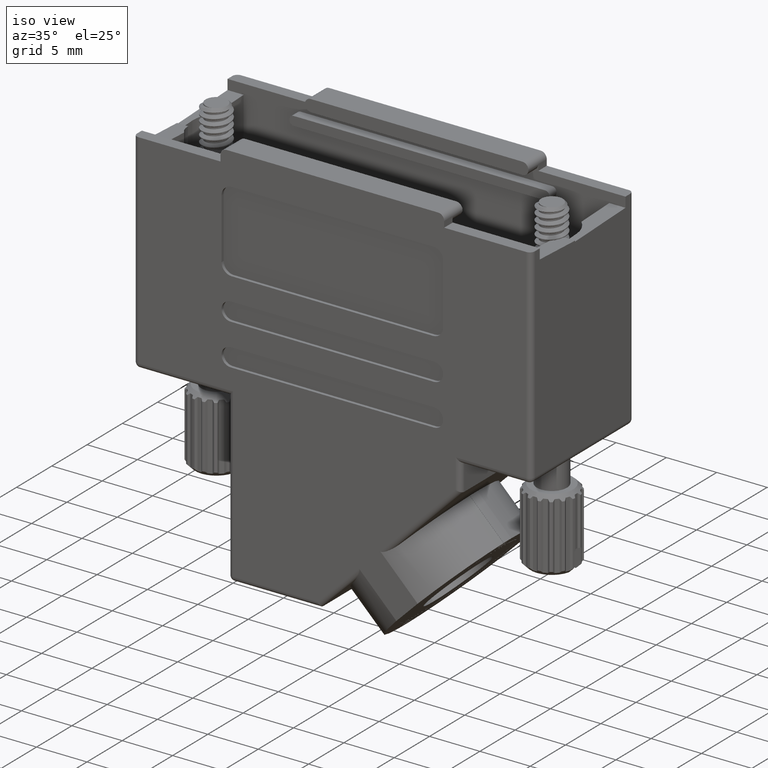
[diagram: clean part render]
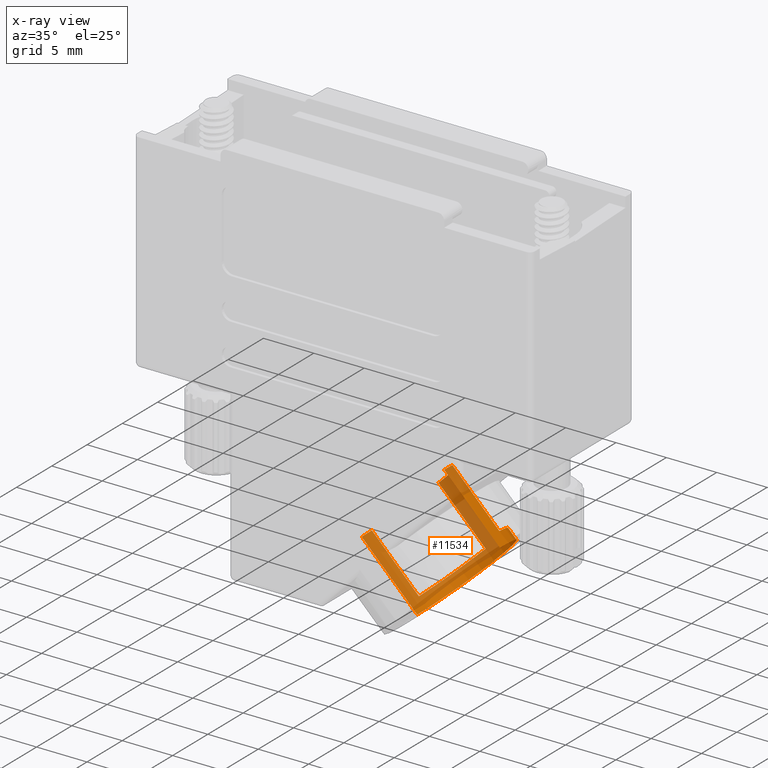
[diagram: x-ray — body ghosted, one internal face saturated and labeled with its STEP entity id]
A machine part, iso view, then the same camera in x-ray: the body is ghosted and one INTERNAL B-rep face — a face not visible from any outside direction — is saturated and labeled: STEP entity #11534.
In plain terms, the highlighted cylindrical surface (partial cylindrical patch) has radius 5.8 mm, axis along (-0.7071, -0, 0.7071).
Its self-contained STEP definition (entity closure, byte-faithful):
#59 = VERTEX_POINT ( 'NONE', #12684 ) ;
#449 = VERTEX_POINT ( 'NONE', #3853 ) ;
#569 = EDGE_CURVE ( 'NONE', #19663, #11645, #14539, .T. ) ;
#696 = ORIENTED_EDGE ( 'NONE', *, *, #21336, .F. ) ;
#1050 = ORIENTED_EDGE ( 'NONE', *, *, #6643, .T. ) ;
#1145 = LINE ( 'NONE', #1256, #13028 ) ;
#1214 = DIRECTION ( 'NONE',  ( -1.000000000000000000, 0.000000000000000000, 0.000000000000000000 ) ) ;
#1254 = CARTESIAN_POINT ( 'NONE',  ( 0.000000000000000000, 0.000000000000000000, -13.79999999999999893 ) ) ;
#1256 = CARTESIAN_POINT ( 'NONE',  ( 0.7000000000000019540, -5.757603668193911339, -5.320786110243318490 ) ) ;
#1323 = DIRECTION ( 'NONE',  ( 0.000000000000000000, 0.000000000000000000, -1.000000000000000000 ) ) ;
#1487 = DIRECTION ( 'NONE',  ( -1.000000000000000000, 0.000000000000000000, 0.000000000000000000 ) ) ;
#1706 = FACE_OUTER_BOUND ( 'NONE', #17716, .T. ) ;
#1934 = CARTESIAN_POINT ( 'NONE',  ( 0.000000000000000000, 0.000000000000000000, -7.200000000000000178 ) ) ;
#2038 = DIRECTION ( 'NONE',  ( -0.000000000000000000, -0.000000000000000000, 1.000000000000000000 ) ) ;
#2151 = CARTESIAN_POINT ( 'NONE',  ( -0.6999999999999997335, -5.757603668193912227, -13.79999999999999893 ) ) ;
#2337 = ORIENTED_EDGE ( 'NONE', *, *, #11369, .F. ) ;
#2380 = CARTESIAN_POINT ( 'NONE',  ( 0.000000000000000000, 0.000000000000000000, -7.200000000000000178 ) ) ;
#2413 = CARTESIAN_POINT ( 'NONE',  ( -5.652433104425032440, -1.299999999999997602, -7.200000000000000178 ) ) ;
#2453 = DIRECTION ( 'NONE',  ( 0.000000000000000000, 0.000000000000000000, -1.000000000000000000 ) ) ;
#2896 = CARTESIAN_POINT ( 'NONE',  ( 0.7000000000000019540, -5.757603668193911339, -7.200000000000000178 ) ) ;
#2991 = CIRCLE ( 'NONE', #16303, 5.799999999999999822 ) ;
#3087 = CIRCLE ( 'NONE', #14602, 5.799999999999999822 ) ;
#3399 = EDGE_CURVE ( 'NONE', #20760, #4731, #16908, .T. ) ;
#3620 = CYLINDRICAL_SURFACE ( 'NONE', #6569, 5.799999999999999822 ) ;
#3745 = VECTOR ( 'NONE', #20941, 1000.000000000000000 ) ;
#3792 = ORIENTED_EDGE ( 'NONE', *, *, #9082, .T. ) ;
#3810 = VERTEX_POINT ( 'NONE', #16354 ) ;
#3853 = CARTESIAN_POINT ( 'NONE',  ( -5.799999999999999822, 2.275493257148285210E-15, -7.200000000000000178 ) ) ;
#4160 = CARTESIAN_POINT ( 'NONE',  ( 5.799999999999999822, 2.606147892918070189E-15, -15.00000000000000000 ) ) ;
#4295 = DIRECTION ( 'NONE',  ( 0.000000000000000000, 0.000000000000000000, -1.000000000000000000 ) ) ;
#4357 = AXIS2_PLACEMENT_3D ( 'NONE', #2380, #4295, #11068 ) ;
#4361 = VECTOR ( 'NONE', #22159, 1000.000000000000000 ) ;
#4363 = EDGE_CURVE ( 'NONE', #4731, #449, #4917, .T. ) ;
#4506 = ORIENTED_EDGE ( 'NONE', *, *, #11793, .T. ) ;
#4517 = DIRECTION ( 'NONE',  ( -0.000000000000000000, -0.000000000000000000, -1.000000000000000000 ) ) ;
#4551 = VECTOR ( 'NONE', #2038, 1000.000000000000000 ) ;
#4639 = CIRCLE ( 'NONE', #12870, 5.799999999999999822 ) ;
#4731 = VERTEX_POINT ( 'NONE', #8394 ) ;
#4830 = CARTESIAN_POINT ( 'NONE',  ( 0.000000000000000000, 0.000000000000000000, -7.200000000000000178 ) ) ;
#4892 = DIRECTION ( 'NONE',  ( -1.000000000000000000, 0.000000000000000000, 0.000000000000000000 ) ) ;
#4917 = LINE ( 'NONE', #18646, #4361 ) ;
#5123 = VERTEX_POINT ( 'NONE', #16357 ) ;
#5650 = DIRECTION ( 'NONE',  ( -1.000000000000000000, 0.000000000000000000, 0.000000000000000000 ) ) ;
#6247 = CIRCLE ( 'NONE', #19548, 5.799999999999999822 ) ;
#6569 = AXIS2_PLACEMENT_3D ( 'NONE', #20635, #13865, #15670 ) ;
#6643 = EDGE_CURVE ( 'NONE', #13390, #5123, #16588, .T. ) ;
#6665 = VERTEX_POINT ( 'NONE', #14211 ) ;
#6988 = CARTESIAN_POINT ( 'NONE',  ( -5.652433104425032440, -1.299999999999997602, -4.203335187245660798 ) ) ;
#8394 = CARTESIAN_POINT ( 'NONE',  ( -5.799999999999999822, 2.606147892918070189E-15, -15.00000000000000000 ) ) ;
#8734 = CIRCLE ( 'NONE', #16985, 5.799999999999999822 ) ;
#8800 = ORIENTED_EDGE ( 'NONE', *, *, #569, .T. ) ;
#9005 = VERTEX_POINT ( 'NONE', #17435 ) ;
#9082 = EDGE_CURVE ( 'NONE', #5123, #19663, #4639, .T. ) ;
#9122 = DIRECTION ( 'NONE',  ( -1.000000000000000000, 0.000000000000000000, 0.000000000000000000 ) ) ;
#9343 = DIRECTION ( 'NONE',  ( -1.000000000000000000, 0.000000000000000000, 0.000000000000000000 ) ) ;
#9485 = LINE ( 'NONE', #21859, #17741 ) ;
#9731 = AXIS2_PLACEMENT_3D ( 'NONE', #21908, #18520, #4892 ) ;
#10310 = EDGE_CURVE ( 'NONE', #20760, #6665, #20846, .T. ) ;
#10377 = CARTESIAN_POINT ( 'NONE',  ( 5.799999999999999822, 2.606147892918070189E-15, -15.00000000000000000 ) ) ;
#10447 = VECTOR ( 'NONE', #12638, 1000.000000000000000 ) ;
#10470 = CARTESIAN_POINT ( 'NONE',  ( 0.000000000000000000, 0.000000000000000000, -7.200000000000000178 ) ) ;
#10754 = ORIENTED_EDGE ( 'NONE', *, *, #20544, .T. ) ;
#10802 = EDGE_CURVE ( 'NONE', #6665, #17897, #3087, .T. ) ;
#11068 = DIRECTION ( 'NONE',  ( -1.000000000000000000, 0.000000000000000000, 0.000000000000000000 ) ) ;
#11369 = EDGE_CURVE ( 'NONE', #13390, #3810, #1145, .T. ) ;
#11534 = ADVANCED_FACE ( 'NONE', ( #1706 ), #3620, .T. ) ;
#11645 = VERTEX_POINT ( 'NONE', #2151 ) ;
#11793 = EDGE_CURVE ( 'NONE', #17897, #9005, #9485, .T. ) ;
#12077 = EDGE_CURVE ( 'NONE', #9005, #3810, #6247, .T. ) ;
#12490 = DIRECTION ( 'NONE',  ( 0.000000000000000000, 0.000000000000000000, -1.000000000000000000 ) ) ;
#12638 = DIRECTION ( 'NONE',  ( -0.000000000000000000, -0.000000000000000000, -1.000000000000000000 ) ) ;
#12684 = CARTESIAN_POINT ( 'NONE',  ( -5.652433104425032440, -1.299999999999997602, -13.79999999999999893 ) ) ;
#12733 = CARTESIAN_POINT ( 'NONE',  ( 5.652433104425032440, -1.299999999999996048, -7.200000000000000178 ) ) ;
#12736 = ORIENTED_EDGE ( 'NONE', *, *, #4363, .F. ) ;
#12787 = ORIENTED_EDGE ( 'NONE', *, *, #10802, .T. ) ;
#12870 = AXIS2_PLACEMENT_3D ( 'NONE', #10470, #12490, #9122 ) ;
#13028 = VECTOR ( 'NONE', #13213, 1000.000000000000000 ) ;
#13211 = DIRECTION ( 'NONE',  ( 0.000000000000000000, 0.000000000000000000, -1.000000000000000000 ) ) ;
#13213 = DIRECTION ( 'NONE',  ( -0.000000000000000000, -0.000000000000000000, -1.000000000000000000 ) ) ;
#13390 = VERTEX_POINT ( 'NONE', #2896 ) ;
#13865 = DIRECTION ( 'NONE',  ( -0.000000000000000000, -0.000000000000000000, 1.000000000000000000 ) ) ;
#14211 = CARTESIAN_POINT ( 'NONE',  ( 5.799999999999999822, 3.696083544159214743E-15, -7.200000000000000178 ) ) ;
#14539 = LINE ( 'NONE', #18133, #10447 ) ;
#14602 = AXIS2_PLACEMENT_3D ( 'NONE', #1934, #15882, #5650 ) ;
#14827 = ORIENTED_EDGE ( 'NONE', *, *, #12077, .T. ) ;
#15670 = DIRECTION ( 'NONE',  ( 1.000000000000000000, 0.000000000000000000, 0.000000000000000000 ) ) ;
#15882 = DIRECTION ( 'NONE',  ( 0.000000000000000000, 0.000000000000000000, -1.000000000000000000 ) ) ;
#16049 = ORIENTED_EDGE ( 'NONE', *, *, #18056, .T. ) ;
#16303 = AXIS2_PLACEMENT_3D ( 'NONE', #1254, #13211, #1487 ) ;
#16354 = CARTESIAN_POINT ( 'NONE',  ( 0.7000000000000020650, -5.757603668193912227, -13.79999999999999893 ) ) ;
#16357 = CARTESIAN_POINT ( 'NONE',  ( 4.185855421300617064E-06, -5.799999999998495248, -7.200000000000000178 ) ) ;
#16588 = CIRCLE ( 'NONE', #4357, 5.799999999999999822 ) ;
#16857 = ORIENTED_EDGE ( 'NONE', *, *, #10310, .T. ) ;
#16908 = CIRCLE ( 'NONE', #9731, 5.799999999999999822 ) ;
#16985 = AXIS2_PLACEMENT_3D ( 'NONE', #4830, #1323, #1214 ) ;
#17042 = VERTEX_POINT ( 'NONE', #2413 ) ;
#17435 = CARTESIAN_POINT ( 'NONE',  ( 5.652433104425032440, -1.299999999999996270, -13.79999999999999893 ) ) ;
#17631 = ORIENTED_EDGE ( 'NONE', *, *, #3399, .F. ) ;
#17716 = EDGE_LOOP ( 'NONE', ( #16857, #12787, #4506, #14827, #2337, #1050, #3792, #8800, #10754, #696, #16049, #12736, #17631 ) ) ;
#17741 = VECTOR ( 'NONE', #4517, 1000.000000000000000 ) ;
#17878 = CARTESIAN_POINT ( 'NONE',  ( -0.6999999999999997335, -5.757603668193912227, -7.200000000000000178 ) ) ;
#17889 = CARTESIAN_POINT ( 'NONE',  ( 0.000000000000000000, 0.000000000000000000, -13.79999999999999893 ) ) ;
#17897 = VERTEX_POINT ( 'NONE', #12733 ) ;
#18056 = EDGE_CURVE ( 'NONE', #17042, #449, #8734, .T. ) ;
#18133 = CARTESIAN_POINT ( 'NONE',  ( -0.6999999999999997335, -5.757603668193912227, -5.320786110243318490 ) ) ;
#18520 = DIRECTION ( 'NONE',  ( 0.000000000000000000, 0.000000000000000000, -1.000000000000000000 ) ) ;
#18646 = CARTESIAN_POINT ( 'NONE',  ( -5.799999999999999822, 2.606147892918070189E-15, -15.00000000000000000 ) ) ;
#19013 = LINE ( 'NONE', #6988, #3745 ) ;
#19548 = AXIS2_PLACEMENT_3D ( 'NONE', #17889, #2453, #9343 ) ;
#19663 = VERTEX_POINT ( 'NONE', #17878 ) ;
#20544 = EDGE_CURVE ( 'NONE', #11645, #59, #2991, .T. ) ;
#20635 = CARTESIAN_POINT ( 'NONE',  ( 0.000000000000000000, 0.000000000000000000, -15.00000000000000000 ) ) ;
#20760 = VERTEX_POINT ( 'NONE', #4160 ) ;
#20846 = LINE ( 'NONE', #10377, #4551 ) ;
#20941 = DIRECTION ( 'NONE',  ( -0.000000000000000000, -0.000000000000000000, -1.000000000000000000 ) ) ;
#21336 = EDGE_CURVE ( 'NONE', #17042, #59, #19013, .T. ) ;
#21859 = CARTESIAN_POINT ( 'NONE',  ( 5.652433104425032440, -1.299999999999996048, -4.203335187245660798 ) ) ;
#21908 = CARTESIAN_POINT ( 'NONE',  ( 0.000000000000000000, 0.000000000000000000, -15.00000000000000000 ) ) ;
#22159 = DIRECTION ( 'NONE',  ( -0.000000000000000000, -0.000000000000000000, 1.000000000000000000 ) ) ;